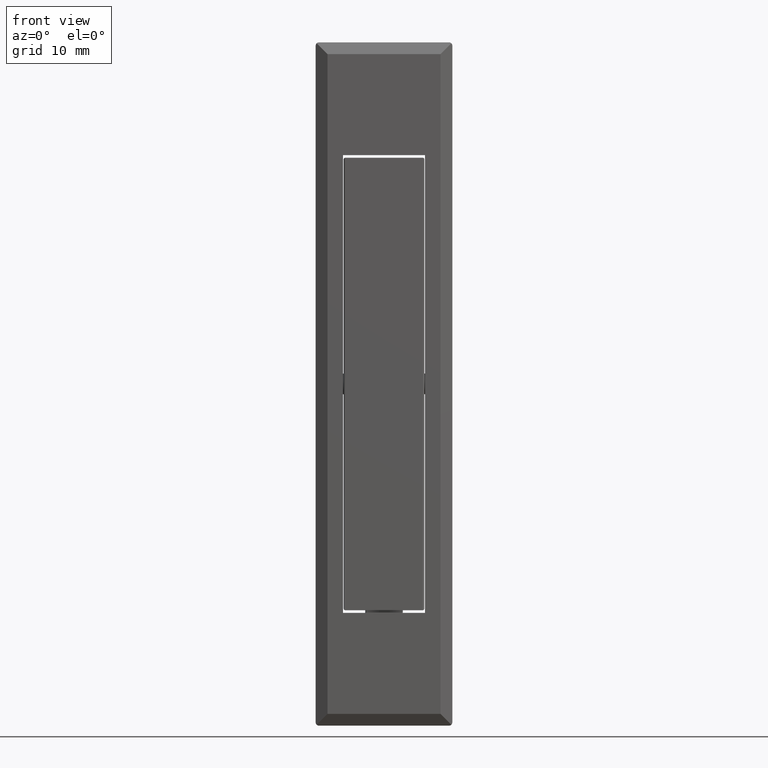
[diagram: clean part render]
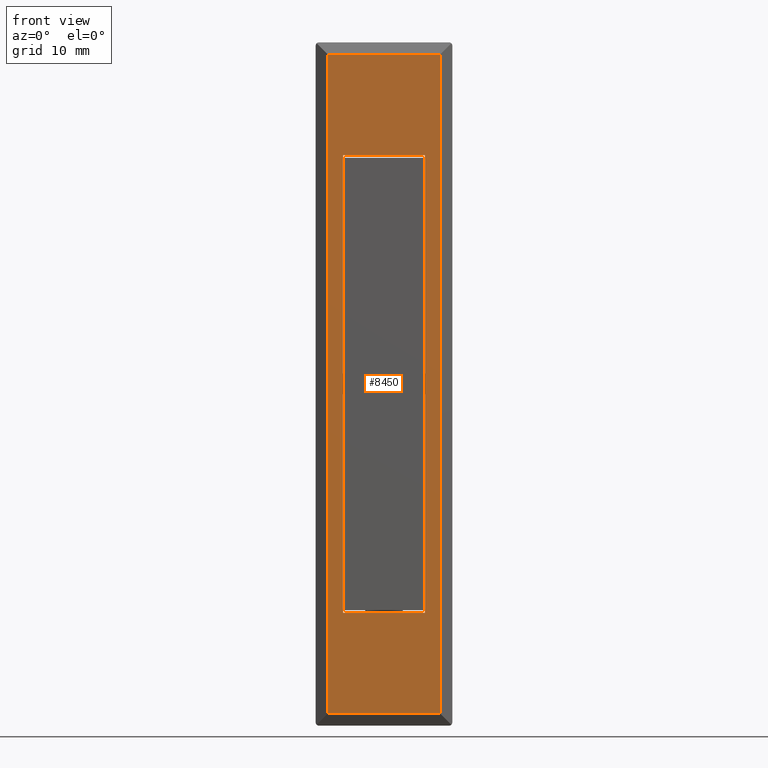
[diagram: same view with one face highlighted and labeled with its STEP entity id]
A machine part, front view. The second image highlights one B-rep face of the part: STEP entity #8450.
In plain terms, the highlighted face is a freeform B-spline surface patch.
Its self-contained STEP definition (entity closure, byte-faithful):
#7335=CARTESIAN_POINT('',(0.0,5.999999999999890,33.500000000000000));
#7336=VERTEX_POINT('',#7335);
#7342=CARTESIAN_POINT('',(0.0,5.999999999999890,-33.500000000000000));
#7343=VERTEX_POINT('',#7342);
#7344=CARTESIAN_POINT('',(0.0,5.999999999999890,-33.500000000000000));
#7345=CARTESIAN_POINT('',(0.0,5.999999999999890,33.500000000000000));
#7346=QUASI_UNIFORM_CURVE('',1,(#7344,#7345),.UNSPECIFIED.,.F.,.U.);
#7347=EDGE_CURVE('',#7343,#7336,#7346,.T.);
#7530=CARTESIAN_POINT('',(0.0,-6.0,-33.500000000000000));
#7531=VERTEX_POINT('',#7530);
#7532=CARTESIAN_POINT('',(0.0,-6.0,-33.500000000000000));
#7533=CARTESIAN_POINT('',(0.0,5.999999999999890,-33.500000000000000));
#7534=QUASI_UNIFORM_CURVE('',1,(#7532,#7533),.UNSPECIFIED.,.F.,.U.);
#7535=EDGE_CURVE('',#7531,#7343,#7534,.T.);
#7566=CARTESIAN_POINT('',(0.0,-6.0,33.500000000000000));
#7567=VERTEX_POINT('',#7566);
#7573=CARTESIAN_POINT('',(0.0,5.999999999999890,33.500000000000000));
#7574=CARTESIAN_POINT('',(0.0,-6.0,33.500000000000000));
#7575=QUASI_UNIFORM_CURVE('',1,(#7573,#7574),.UNSPECIFIED.,.F.,.U.);
#7576=EDGE_CURVE('',#7336,#7567,#7575,.T.);
#7626=CARTESIAN_POINT('',(0.0,-6.0,33.500000000000000));
#7627=CARTESIAN_POINT('',(0.0,-6.0,-33.500000000000000));
#7628=QUASI_UNIFORM_CURVE('',1,(#7626,#7627),.UNSPECIFIED.,.F.,.U.);
#7629=EDGE_CURVE('',#7567,#7531,#7628,.T.);
#8082=CARTESIAN_POINT('',(-1.012505E-015,8.268000000000090,-48.268000000000001));
#8083=VERTEX_POINT('',#8082);
#8089=CARTESIAN_POINT('',(0.0,8.268000000000159,48.267899999999997));
#8090=VERTEX_POINT('',#8089);
#8091=CARTESIAN_POINT('',(-1.012505E-015,8.268000000000090,-48.268000000000001));
#8092=CARTESIAN_POINT('',(0.0,8.268000000000159,48.267899999999997));
#8093=QUASI_UNIFORM_CURVE('',1,(#8091,#8092),.UNSPECIFIED.,.F.,.U.);
#8094=EDGE_CURVE('',#8083,#8090,#8093,.T.);
#8110=CARTESIAN_POINT('',(1.012505E-015,-8.267999999999999,-48.268000000000001));
#8111=VERTEX_POINT('',#8110);
#8124=CARTESIAN_POINT('',(1.012505E-015,-8.267999999999999,48.267899999999997));
#8125=VERTEX_POINT('',#8124);
#8131=CARTESIAN_POINT('',(1.012505E-015,-8.267999999999999,-48.268000000000001));
#8132=CARTESIAN_POINT('',(1.012505E-015,-8.267999999999999,48.267899999999997));
#8133=QUASI_UNIFORM_CURVE('',1,(#8131,#8132),.UNSPECIFIED.,.F.,.U.);
#8134=EDGE_CURVE('',#8111,#8125,#8133,.T.);
#8205=CARTESIAN_POINT('',(1.012505E-015,-8.267999999999999,48.267899999999997));
#8206=CARTESIAN_POINT('',(0.0,8.268000000000159,48.267899999999997));
#8207=QUASI_UNIFORM_CURVE('',1,(#8205,#8206),.UNSPECIFIED.,.F.,.U.);
#8208=EDGE_CURVE('',#8125,#8090,#8207,.T.);
#8221=CARTESIAN_POINT('',(1.012505E-015,-8.267999999999999,-48.268000000000001));
#8222=CARTESIAN_POINT('',(-1.012505E-015,8.268000000000090,-48.268000000000001));
#8223=QUASI_UNIFORM_CURVE('',1,(#8221,#8222),.UNSPECIFIED.,.F.,.U.);
#8224=EDGE_CURVE('',#8111,#8083,#8223,.T.);
#8433=CARTESIAN_POINT('',(0.0,-9.093972798415551,-53.089969485420568));
#8434=CARTESIAN_POINT('',(0.0,-9.093972798415551,53.089863443733151));
#8435=CARTESIAN_POINT('',(0.0,9.093972354885626,-53.089969485420568));
#8436=CARTESIAN_POINT('',(0.0,9.093972354885626,53.089863443733151));
#8437=B_SPLINE_SURFACE_WITH_KNOTS('',1,1,((#8433,#8435),(#8434,#8436)),.UNSPECIFIED.,.F.,.F.,.U.,(2,2),(2,2),(0.0,106.179832929153700),(0.0,18.187945153301179),.UNSPECIFIED.);
#8438=ORIENTED_EDGE('',*,*,#8208,.T.);
#8439=ORIENTED_EDGE('',*,*,#8094,.F.);
#8440=ORIENTED_EDGE('',*,*,#8224,.F.);
#8441=ORIENTED_EDGE('',*,*,#8134,.T.);
#8442=EDGE_LOOP('',(#8438,#8439,#8440,#8441));
#8443=FACE_OUTER_BOUND('',#8442,.T.);
#8444=ORIENTED_EDGE('',*,*,#7347,.T.);
#8445=ORIENTED_EDGE('',*,*,#7576,.T.);
#8446=ORIENTED_EDGE('',*,*,#7629,.T.);
#8447=ORIENTED_EDGE('',*,*,#7535,.T.);
#8448=EDGE_LOOP('',(#8444,#8445,#8446,#8447));
#8449=FACE_BOUND('',#8448,.T.);
#8450=ADVANCED_FACE('',(#8443,#8449),#8437,.T.);